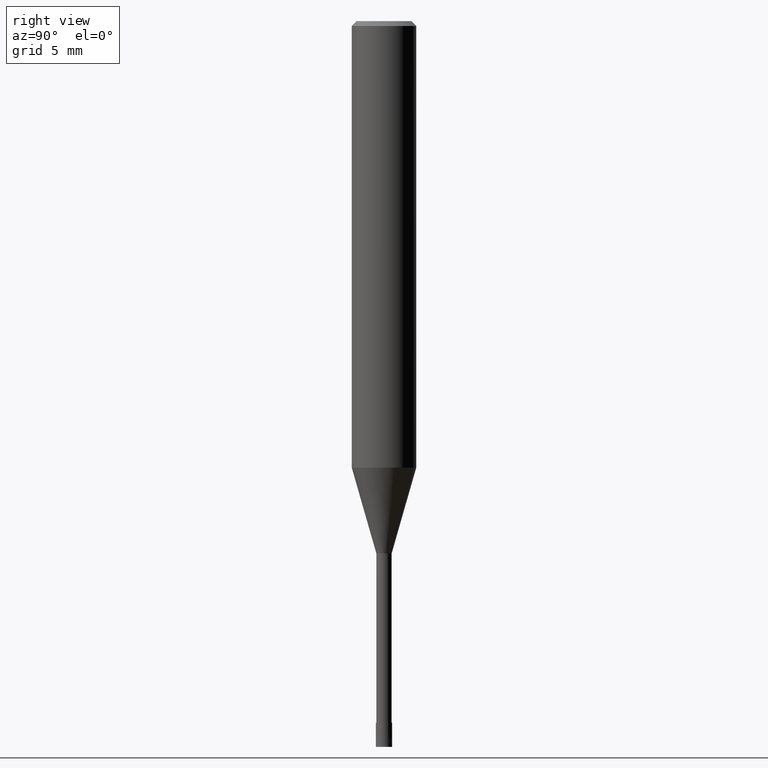
[diagram: clean part render]
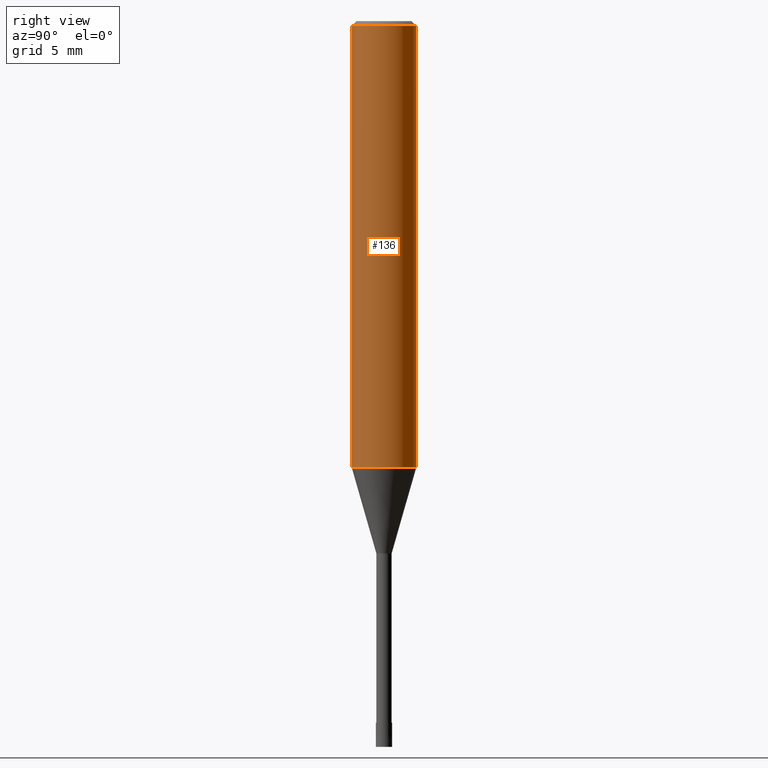
[diagram: same view with one face highlighted and labeled with its STEP entity id]
A machine part, right view. The second image highlights one B-rep face of the part: STEP entity #136.
In plain terms, the highlighted cylindrical surface (edge-blend (fillet) strip) has radius 2 mm, axis along (-0, -0, 1).
Its self-contained STEP definition (entity closure, byte-faithful):
#122=VERTEX_POINT('',#264);
#136=ADVANCED_FACE('',(#280),#281,.T.);
#146=VERTEX_POINT('',#294);
#148=EDGE_CURVE('',#146,#122,#296,.T.);
#156=EDGE_CURVE('',#188,#122,#304,.T.);
#162=EDGE_CURVE('',#198,#146,#310,.T.);
#188=VERTEX_POINT('',#341);
#190=EDGE_CURVE('',#188,#198,#343,.T.);
#198=VERTEX_POINT('',#351);
#264=CARTESIAN_POINT('',(2.44921270764475E-016,-2.0,-0.300000000000001));
#280=FACE_OUTER_BOUND('',#432,.T.);
#281=CYLINDRICAL_SURFACE('',#433,2.0);
#294=CARTESIAN_POINT('',(2.44921270764475E-016,-2.0,-27.682));
#296=LINE('',#449,#450);
#304=CIRCLE('',#462,2.0);
#310=CIRCLE('',#470,2.0);
#341=CARTESIAN_POINT('',(0.0,2.0,-0.300000000000001));
#343=LINE('',#510,#511);
#351=CARTESIAN_POINT('',(0.0,2.0,-27.682));
#432=EDGE_LOOP('',(#612,#613,#614,#615));
#433=AXIS2_PLACEMENT_3D('',#616,#617,#618);
#449=CARTESIAN_POINT('',(2.44921270764475E-016,-2.0,-13.991));
#450=VECTOR('',#643,1.0);
#462=AXIS2_PLACEMENT_3D('',#648,#649,#650);
#470=AXIS2_PLACEMENT_3D('',#654,#655,#656);
#510=CARTESIAN_POINT('',(-2.44921270764475E-016,2.0,-13.991));
#511=VECTOR('',#700,1.0);
#612=ORIENTED_EDGE('',*,*,#190,.F.);
#613=ORIENTED_EDGE('',*,*,#156,.T.);
#614=ORIENTED_EDGE('',*,*,#148,.F.);
#615=ORIENTED_EDGE('',*,*,#162,.F.);
#616=CARTESIAN_POINT('',(0.0,0.0,-13.991));
#617=DIRECTION('',(-0.0,-0.0,1.0));
#618=DIRECTION('',(0.0,1.0,0.0));
#643=DIRECTION('',(-0.0,-0.0,1.0));
#648=CARTESIAN_POINT('',(0.0,0.0,-0.300000000000001));
#649=DIRECTION('',(0.0,0.0,-1.0));
#650=DIRECTION('',(0.0,1.0,0.0));
#654=CARTESIAN_POINT('',(0.0,0.0,-27.682));
#655=DIRECTION('',(0.0,0.0,-1.0));
#656=DIRECTION('',(0.0,1.0,0.0));
#700=DIRECTION('',(0.0,0.0,-1.0));